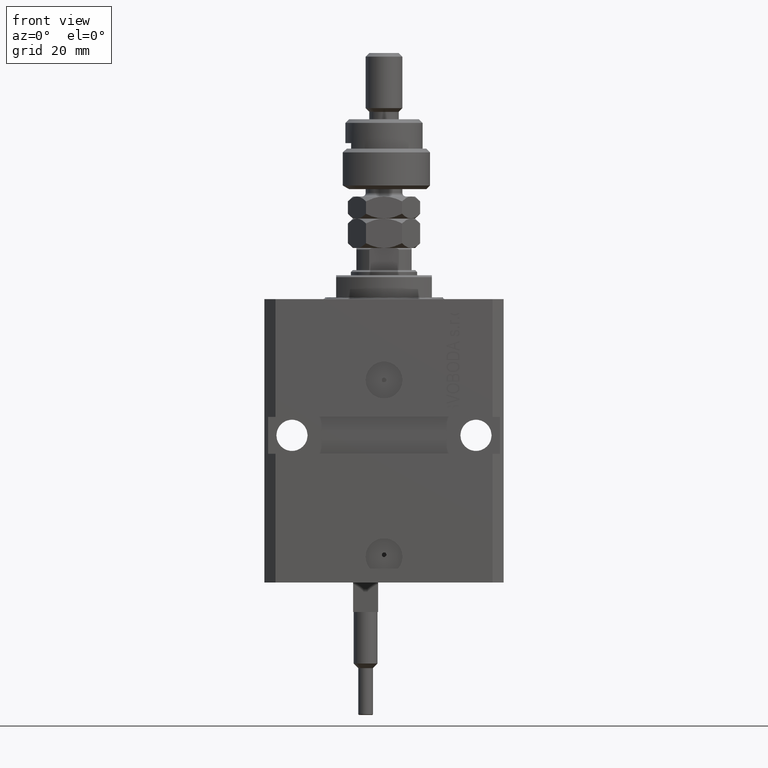
[diagram: clean part render]
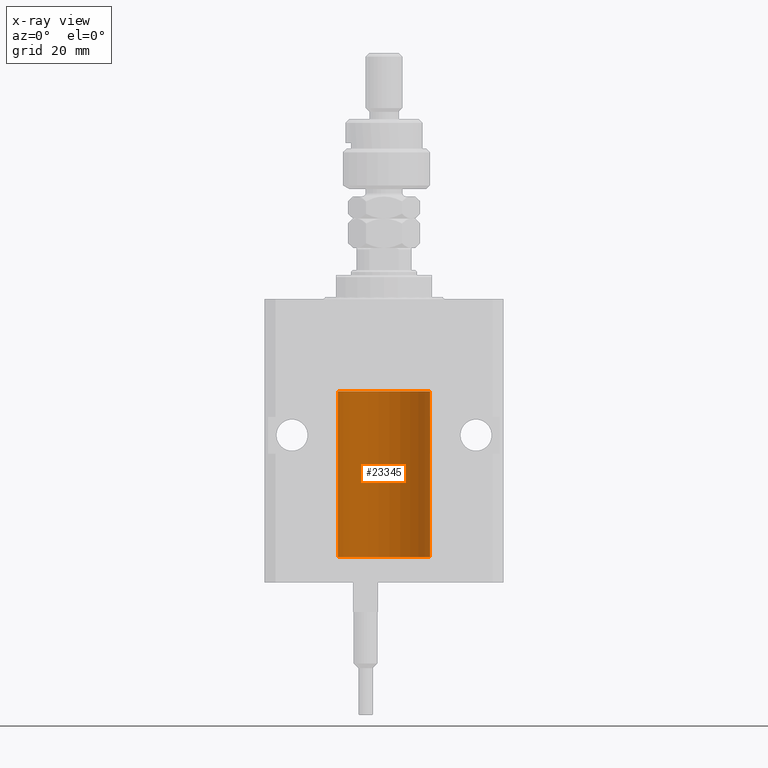
[diagram: x-ray — body ghosted, one internal face saturated and labeled with its STEP entity id]
A machine part, front view, then the same camera in x-ray: the body is ghosted and one INTERNAL B-rep face — a face not visible from any outside direction — is saturated and labeled: STEP entity #23345.
In plain terms, the highlighted cylindrical surface (partial cylindrical patch) has radius 12.5 mm, axis along (0, 0, 1).
Its self-contained STEP definition (entity closure, byte-faithful):
#673 = VERTEX_POINT ( 'NONE', #26678 ) ;
#1176 = CARTESIAN_POINT ( 'NONE',  ( 12.50000000000000000, -1.836039810331332019E-15, -65.62500000000000000 ) ) ;
#2913 = VECTOR ( 'NONE', #36353, 1000.000000000000000 ) ;
#3040 = VERTEX_POINT ( 'NONE', #42785 ) ;
#3359 = LINE ( 'NONE', #23331, #18103 ) ;
#3766 = CARTESIAN_POINT ( 'NONE',  ( -12.48810268015257741, 0.5573155909661291485, -64.67347410093869087 ) ) ;
#4411 = B_SPLINE_CURVE_WITH_KNOTS ( 'NONE', 3,
 ( #1176, #45541, #4838, #10266, #26081, #14691, #14439, #14945 ),
 .UNSPECIFIED., .F., .F.,
 ( 4, 2, 2, 4 ),
 ( 1.784246692340212412E-18, 0.0002443481056285665750, 0.0004886962112571313068, 0.0009773924225142606621 ),
 .UNSPECIFIED. ) ;
#4838 = CARTESIAN_POINT ( 'NONE',  ( 12.49915742890631876, 0.1636982395582385896, -65.60872397847025184 ) ) ;
#5767 = DIRECTION ( 'NONE',  ( 1.000000000000000000, 0.000000000000000000, 0.000000000000000000 ) ) ;
#5913 = VECTOR ( 'NONE', #49761, 1000.000000000000000 ) ;
#6370 = EDGE_CURVE ( 'NONE', #48998, #11456, #10090, .T. ) ;
#7073 = CARTESIAN_POINT ( 'NONE',  ( 12.50000000000000000, 0.000000000000000000, -70.09999999999999432 ) ) ;
#7527 = CARTESIAN_POINT ( 'NONE',  ( 12.49012055744648997, 0.5002956126656082914, -64.61641710202404454 ) ) ;
#7660 = CARTESIAN_POINT ( 'NONE',  ( -12.49915784441386890, 0.1636601911727942615, -64.39126818989430490 ) ) ;
#8803 = VERTEX_POINT ( 'NONE', #47902 ) ;
#10051 = DIRECTION ( 'NONE',  ( -0.000000000000000000, -0.000000000000000000, 1.000000000000000000 ) ) ;
#10090 = LINE ( 'NONE', #25906, #5913 ) ;
#10266 = CARTESIAN_POINT ( 'NONE',  ( 12.49625698805481022, 0.3151108292486944906, -65.54593695688173227 ) ) ;
#11259 = VECTOR ( 'NONE', #10051, 1000.000000000000000 ) ;
#11352 = ORIENTED_EDGE ( 'NONE', *, *, #18645, .T. ) ;
#11456 = VERTEX_POINT ( 'NONE', #12079 ) ;
#11995 = CARTESIAN_POINT ( 'NONE',  ( -12.50000000000000000, 1.530808498934191127E-15, -70.09999999999999432 ) ) ;
#12079 = CARTESIAN_POINT ( 'NONE',  ( 12.50000000000000000, 0.000000000000000000, -25.10000000000000142 ) ) ;
#12153 = ORIENTED_EDGE ( 'NONE', *, *, #41533, .T. ) ;
#12188 = CARTESIAN_POINT ( 'NONE',  ( 0.000000000000000000, 0.000000000000000000, -70.09999999999999432 ) ) ;
#12609 = ORIENTED_EDGE ( 'NONE', *, *, #27735, .F. ) ;
#13964 = CARTESIAN_POINT ( 'NONE',  ( 12.50000000000000000, 0.000000000000000000, -70.09999999999999432 ) ) ;
#14439 = CARTESIAN_POINT ( 'NONE',  ( 12.48436522214885969, 0.6250000000001505462, -65.16312747540307271 ) ) ;
#14691 = CARTESIAN_POINT ( 'NONE',  ( 12.48809900631782099, 0.5573988467445673001, -65.32640147935475738 ) ) ;
#14945 = CARTESIAN_POINT ( 'NONE',  ( 12.48436522214846711, 0.6250000000078848039, -64.99999999999923261 ) ) ;
#15122 = CARTESIAN_POINT ( 'NONE',  ( -12.49631005746706158, 0.3253680783018496059, -65.55856740465392818 ) ) ;
#15720 = CARTESIAN_POINT ( 'NONE',  ( -12.48436376893640087, 0.6250290278979918623, -65.08132082824472775 ) ) ;
#16973 = CIRCLE ( 'NONE', #31088, 12.50000000000000000 ) ;
#18014 = ORIENTED_EDGE ( 'NONE', *, *, #40037, .T. ) ;
#18103 = VECTOR ( 'NONE', #35269, 1000.000000000000000 ) ;
#18645 = EDGE_CURVE ( 'NONE', #40953, #30791, #45579, .T. ) ;
#19568 = ORIENTED_EDGE ( 'NONE', *, *, #40597, .T. ) ;
#19964 = B_SPLINE_CURVE_WITH_KNOTS ( 'NONE', 3,
 ( #43070, #50058, #30369, #46691, #7527, #35289, #38409, #26730 ),
 .UNSPECIFIED., .F., .F.,
 ( 4, 2, 2, 4 ),
 ( 0.0009773924225142606621, 0.001221629287363811033, 0.001465866152213361404, 0.001954339881912461711 ),
 .UNSPECIFIED. ) ;
#20030 = LINE ( 'NONE', #11995, #2913 ) ;
#20801 = ORIENTED_EDGE ( 'NONE', *, *, #6370, .T. ) ;
#22112 = FACE_OUTER_BOUND ( 'NONE', #45573, .T. ) ;
#23331 = CARTESIAN_POINT ( 'NONE',  ( -12.50000000000000000, 1.530808498934191127E-15, -70.09999999999999432 ) ) ;
#23345 = ADVANCED_FACE ( 'NONE', ( #22112 ), #37424, .F. ) ;
#23490 = CARTESIAN_POINT ( 'NONE',  ( -12.49625855304193855, 0.3150454781038045660, -64.45402800297485157 ) ) ;
#23607 = DIRECTION ( 'NONE',  ( 1.000000000000000000, 0.000000000000000000, 0.000000000000000000 ) ) ;
#25906 = CARTESIAN_POINT ( 'NONE',  ( 12.50000000000000000, 0.000000000000000000, -70.09999999999999432 ) ) ;
#26081 = CARTESIAN_POINT ( 'NONE',  ( 12.49421963472024721, 0.3844519291903572555, -65.49947303647046226 ) ) ;
#26169 = DIRECTION ( 'NONE',  ( 0.000000000000000000, 0.000000000000000000, 1.000000000000000000 ) ) ;
#26678 = CARTESIAN_POINT ( 'NONE',  ( -12.50000000000000000, -1.050566418211748297E-14, -64.37500000000000000 ) ) ;
#26730 = CARTESIAN_POINT ( 'NONE',  ( 12.50000000000017941, 3.868073689162038701E-13, -64.37499999999640465 ) ) ;
#27045 = CARTESIAN_POINT ( 'NONE',  ( -12.49999999999999289, 0.1631761135151231223, -65.62499999999984368 ) ) ;
#27735 = EDGE_CURVE ( 'NONE', #40953, #3040, #51310, .T. ) ;
#28103 = VERTEX_POINT ( 'NONE', #48163 ) ;
#29130 = CARTESIAN_POINT ( 'NONE',  ( 0.000000000000000000, 0.000000000000000000, -70.09999999999999432 ) ) ;
#29771 = B_SPLINE_CURVE_WITH_KNOTS ( 'NONE', 3,
 ( #47342, #43205, #7660, #23490, #39322, #3766, #51214, #15720, #31545, #34832, #34056, #15122, #27045, #45714 ),
 .UNSPECIFIED., .F., .F.,
 ( 4, 2, 2, 2, 2, 2, 4 ),
 ( 3.452213508042194616E-18, 0.0002442924852390797774, 0.0004885849704781561938, 0.0009771699409563384085, 0.001221462426195450224, 0.001465754911434562040, 0.001954339881912785671 ),
 .UNSPECIFIED. ) ;
#30369 = CARTESIAN_POINT ( 'NONE',  ( 12.48520578595314845, 0.6087855079133740466, -64.83656717509344958 ) ) ;
#30791 = VERTEX_POINT ( 'NONE', #43734 ) ;
#31088 = AXIS2_PLACEMENT_3D ( 'NONE', #42520, #26169, #42007 ) ;
#31507 = ORIENTED_EDGE ( 'NONE', *, *, #48345, .F. ) ;
#31545 = CARTESIAN_POINT ( 'NONE',  ( -12.48520330846398174, 0.6088355886774118320, -65.16325431852561678 ) ) ;
#31852 = CARTESIAN_POINT ( 'NONE',  ( -12.50000000000000000, 1.530808498934191127E-15, -25.10000000000000142 ) ) ;
#33867 = VERTEX_POINT ( 'NONE', #31852 ) ;
#34056 = CARTESIAN_POINT ( 'NONE',  ( -12.49011732893843707, 0.5003763274120244242, -65.38348111289288056 ) ) ;
#34832 = CARTESIAN_POINT ( 'NONE',  ( -12.48809959379011580, 0.5462151254764967545, -65.31461370481615347 ) ) ;
#35269 = DIRECTION ( 'NONE',  ( -0.000000000000000000, -0.000000000000000000, 1.000000000000000000 ) ) ;
#35289 = CARTESIAN_POINT ( 'NONE',  ( 12.49631206032076136, 0.3252904079142934779, -64.44139700214927302 ) ) ;
#36353 = DIRECTION ( 'NONE',  ( -0.000000000000000000, -0.000000000000000000, 1.000000000000000000 ) ) ;
#37424 = CYLINDRICAL_SURFACE ( 'NONE', #47753, 12.50000000000000000 ) ;
#37597 = EDGE_CURVE ( 'NONE', #11456, #33867, #16973, .T. ) ;
#38409 = CARTESIAN_POINT ( 'NONE',  ( 12.49999999999999822, 0.1631389616600901760, -64.37500000000022737 ) ) ;
#39041 = EDGE_CURVE ( 'NONE', #673, #33867, #20030, .T. ) ;
#39322 = CARTESIAN_POINT ( 'NONE',  ( -12.49422197749724539, 0.3843754434364305972, -64.50047099568097053 ) ) ;
#40037 = EDGE_CURVE ( 'NONE', #8803, #48998, #19964, .T. ) ;
#40447 = ORIENTED_EDGE ( 'NONE', *, *, #37597, .T. ) ;
#40597 = EDGE_CURVE ( 'NONE', #30791, #8803, #4411, .T. ) ;
#40953 = VERTEX_POINT ( 'NONE', #7073 ) ;
#41533 = EDGE_CURVE ( 'NONE', #673, #28103, #29771, .T. ) ;
#42007 = DIRECTION ( 'NONE',  ( 1.000000000000000000, 0.000000000000000000, 0.000000000000000000 ) ) ;
#42520 = CARTESIAN_POINT ( 'NONE',  ( 0.000000000000000000, 0.000000000000000000, -25.10000000000000142 ) ) ;
#42642 = ORIENTED_EDGE ( 'NONE', *, *, #39041, .F. ) ;
#42785 = CARTESIAN_POINT ( 'NONE',  ( -12.50000000000000000, 1.530808498934191127E-15, -70.09999999999999432 ) ) ;
#43069 = DIRECTION ( 'NONE',  ( 0.000000000000000000, 0.000000000000000000, 1.000000000000000000 ) ) ;
#43070 = CARTESIAN_POINT ( 'NONE',  ( 12.48436522214846711, 0.6250000000078848039, -64.99999999999923261 ) ) ;
#43205 = CARTESIAN_POINT ( 'NONE',  ( -12.49999999999999645, 0.08260426088728482774, -64.37499999999998579 ) ) ;
#43734 = CARTESIAN_POINT ( 'NONE',  ( 12.50000000000000000, -1.836039810331332019E-15, -65.62500000000000000 ) ) ;
#44705 = AXIS2_PLACEMENT_3D ( 'NONE', #12188, #43069, #23607 ) ;
#44943 = DIRECTION ( 'NONE',  ( -0.000000000000000000, -0.000000000000000000, 1.000000000000000000 ) ) ;
#45541 = CARTESIAN_POINT ( 'NONE',  ( 12.49999999999999822, 0.08262306818362624705, -65.62500000000000000 ) ) ;
#45573 = EDGE_LOOP ( 'NONE', ( #31507, #12609, #11352, #19568, #18014, #20801, #40447, #42642, #12153 ) ) ;
#45579 = LINE ( 'NONE', #13964, #11259 ) ;
#45714 = CARTESIAN_POINT ( 'NONE',  ( -12.50000000000017941, 3.883381774819353300E-13, -65.62500000000359535 ) ) ;
#46691 = CARTESIAN_POINT ( 'NONE',  ( 12.48810305280568222, 0.5461368461738485003, -64.68525466142676805 ) ) ;
#47342 = CARTESIAN_POINT ( 'NONE',  ( -12.50000000000000000, -1.050566418211748297E-14, -64.37500000000000000 ) ) ;
#47753 = AXIS2_PLACEMENT_3D ( 'NONE', #29130, #44943, #5767 ) ;
#47902 = CARTESIAN_POINT ( 'NONE',  ( 12.48436522214846711, 0.6250000000078848039, -64.99999999999923261 ) ) ;
#48163 = CARTESIAN_POINT ( 'NONE',  ( -12.50000000000017941, 3.883381774819353300E-13, -65.62500000000359535 ) ) ;
#48345 = EDGE_CURVE ( 'NONE', #3040, #28103, #3359, .T. ) ;
#48998 = VERTEX_POINT ( 'NONE', #50316 ) ;
#49761 = DIRECTION ( 'NONE',  ( -0.000000000000000000, -0.000000000000000000, 1.000000000000000000 ) ) ;
#50058 = CARTESIAN_POINT ( 'NONE',  ( 12.48436522214888100, 0.6249999999996834754, -64.91847339462351840 ) ) ;
#50316 = CARTESIAN_POINT ( 'NONE',  ( 12.50000000000017941, 3.868073689162038701E-13, -64.37499999999640465 ) ) ;
#51214 = CARTESIAN_POINT ( 'NONE',  ( -12.48436813453758454, 0.6249418250771179295, -64.83668996798921569 ) ) ;
#51310 = CIRCLE ( 'NONE', #44705, 12.50000000000000000 ) ;